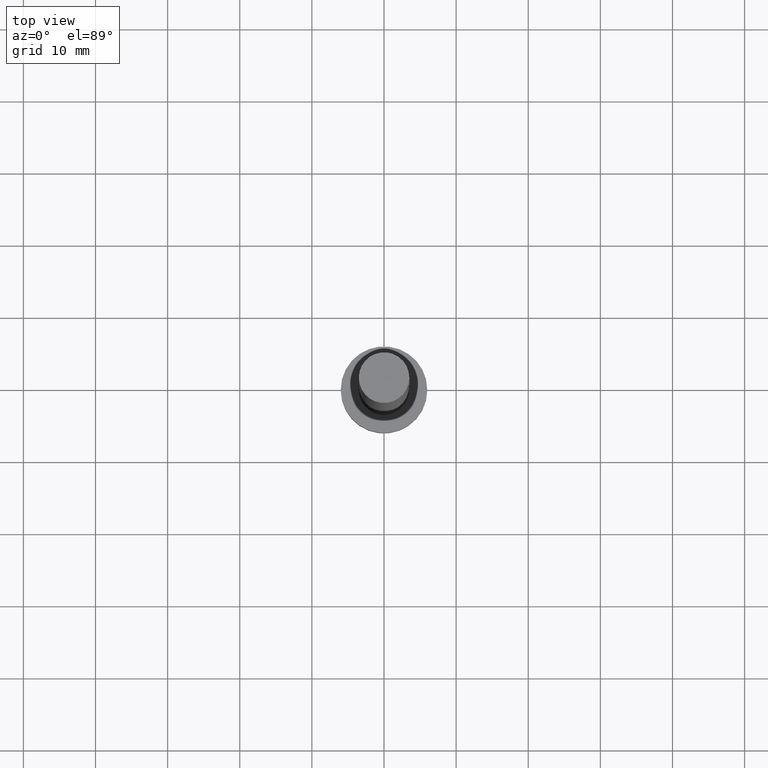
[diagram: clean part render]
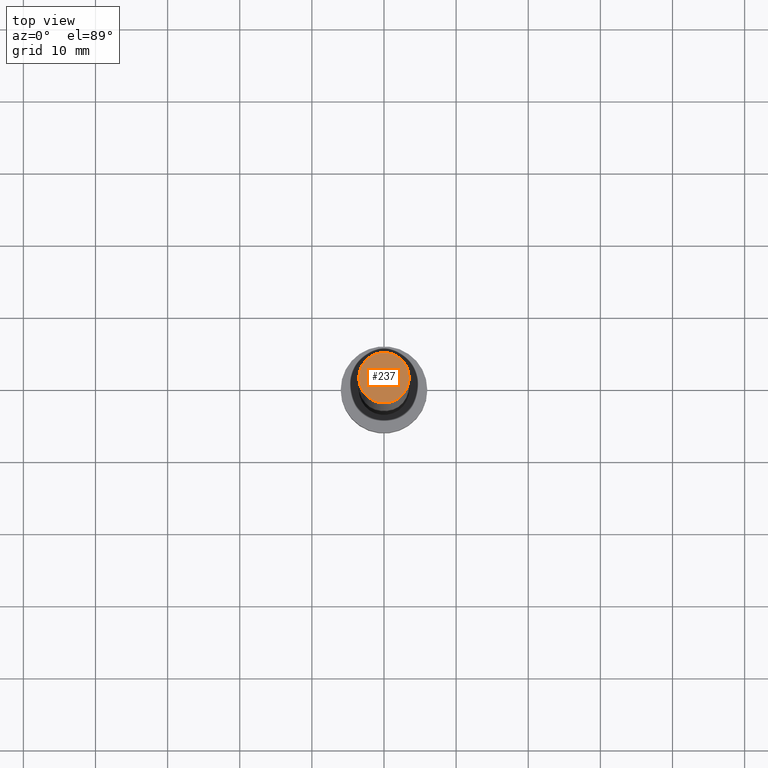
[diagram: same view with one face highlighted and labeled with its STEP entity id]
A machine part, top view. The second image highlights one B-rep face of the part: STEP entity #237.
In plain terms, the highlighted planar face has unit normal (0, 0, 1).
Its self-contained STEP definition (entity closure, byte-faithful):
#1 = PLANE ( 'NONE',  #169 ) ;
#10 = EDGE_CURVE ( 'NONE', #123, #120, #86, .T. ) ;
#11 = AXIS2_PLACEMENT_3D ( 'NONE', #196, #219, #64 ) ;
#15 = DIRECTION ( 'NONE',  ( 0.000000000000000000, 0.000000000000000000, 1.000000000000000000 ) ) ;
#19 = FACE_OUTER_BOUND ( 'NONE', #103, .T. ) ;
#64 = DIRECTION ( 'NONE',  ( 1.000000000000000000, 0.000000000000000000, 0.000000000000000000 ) ) ;
#86 = CIRCLE ( 'NONE', #149, 3.500000000000000000 ) ;
#103 = EDGE_LOOP ( 'NONE', ( #227, #179 ) ) ;
#120 = VERTEX_POINT ( 'NONE', #156 ) ;
#123 = VERTEX_POINT ( 'NONE', #151 ) ;
#136 = DIRECTION ( 'NONE',  ( 0.000000000000000000, 0.000000000000000000, 1.000000000000000000 ) ) ;
#149 = AXIS2_PLACEMENT_3D ( 'NONE', #167, #15, #255 ) ;
#151 = CARTESIAN_POINT ( 'NONE',  ( 3.500000000000000000, 4.286263797015736595E-16, 100.0000000000000000 ) ) ;
#156 = CARTESIAN_POINT ( 'NONE',  ( -3.500000000000000000, 0.000000000000000000, 100.0000000000000000 ) ) ;
#167 = CARTESIAN_POINT ( 'NONE',  ( 0.000000000000000000, 0.000000000000000000, 100.0000000000000000 ) ) ;
#169 = AXIS2_PLACEMENT_3D ( 'NONE', #240, #136, #171 ) ;
#171 = DIRECTION ( 'NONE',  ( 1.000000000000000000, 0.000000000000000000, -0.000000000000000000 ) ) ;
#179 = ORIENTED_EDGE ( 'NONE', *, *, #10, .T. ) ;
#196 = CARTESIAN_POINT ( 'NONE',  ( 0.000000000000000000, 0.000000000000000000, 100.0000000000000000 ) ) ;
#219 = DIRECTION ( 'NONE',  ( 0.000000000000000000, 0.000000000000000000, 1.000000000000000000 ) ) ;
#222 = CIRCLE ( 'NONE', #11, 3.500000000000000000 ) ;
#227 = ORIENTED_EDGE ( 'NONE', *, *, #239, .T. ) ;
#237 = ADVANCED_FACE ( 'NONE', ( #19 ), #1, .T. ) ;
#239 = EDGE_CURVE ( 'NONE', #120, #123, #222, .T. ) ;
#240 = CARTESIAN_POINT ( 'NONE',  ( 0.000000000000000000, 0.000000000000000000, 100.0000000000000000 ) ) ;
#255 = DIRECTION ( 'NONE',  ( 1.000000000000000000, 0.000000000000000000, 0.000000000000000000 ) ) ;